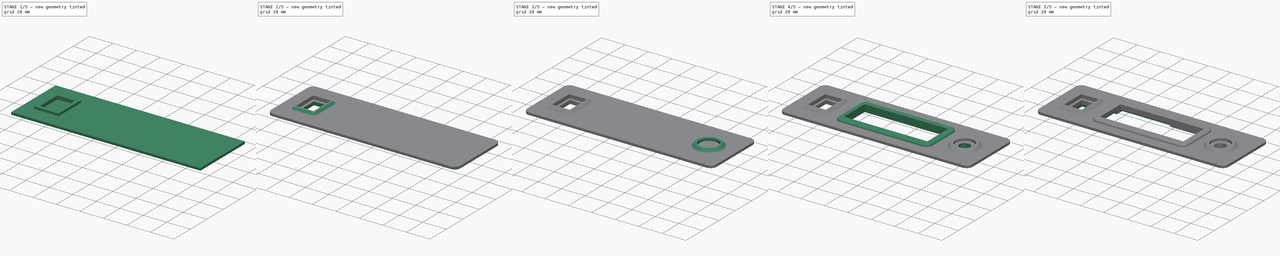
[diagram: build sequence overview — one tinted view per stage of 5, left to right]
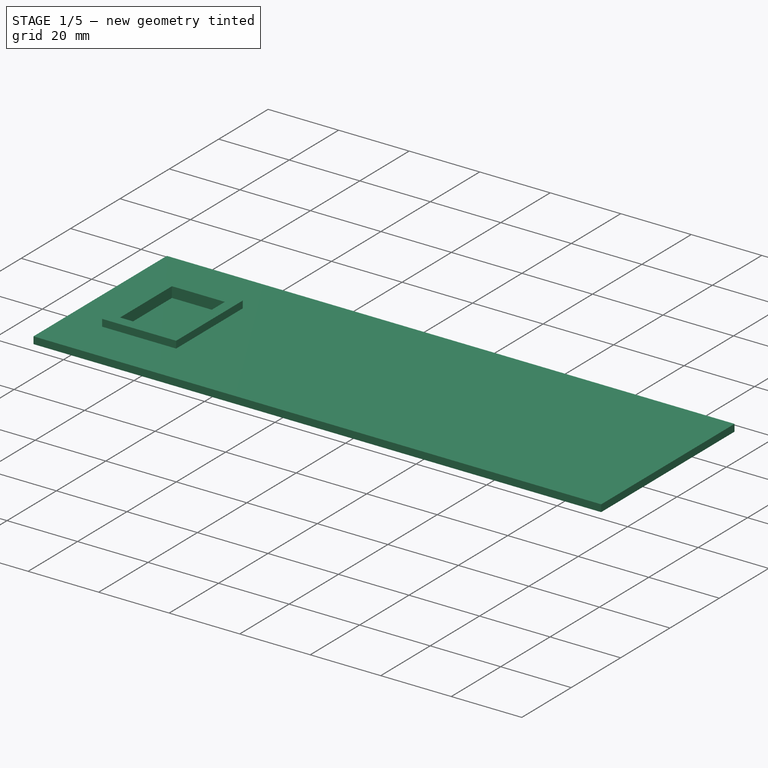
[diagram: stage 1 of 5 — iso view after this stage's code; geometry added in this stage tinted green]
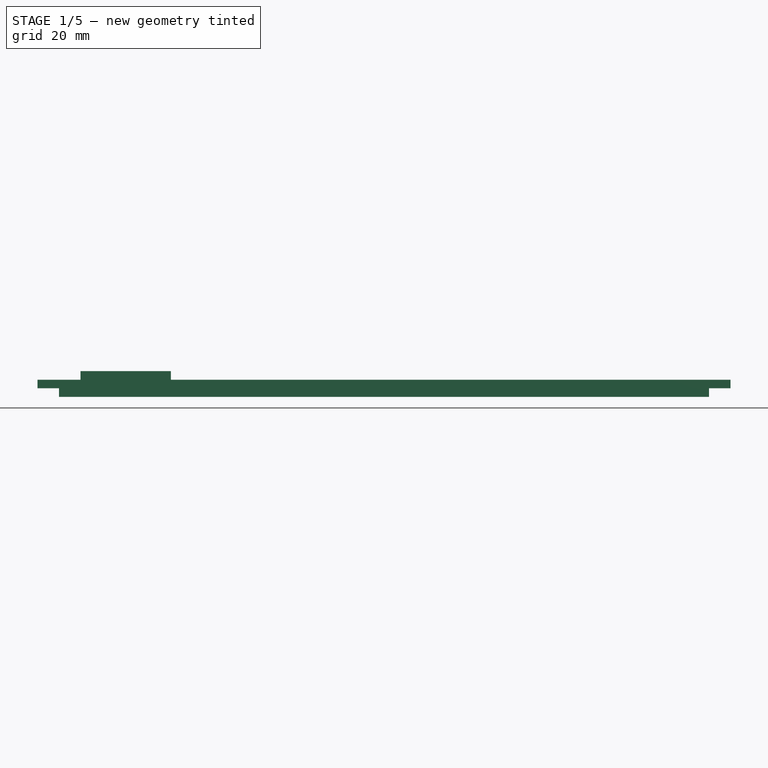
[diagram: stage 1 of 5 — front view after this stage's code; geometry added in this stage tinted green]
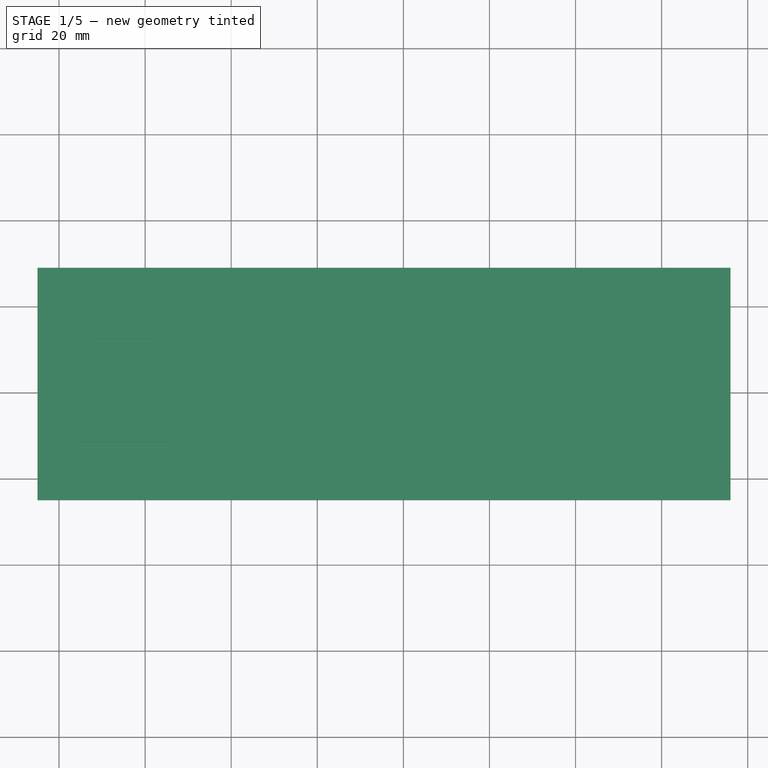
[diagram: stage 1 of 5 — top view after this stage's code; geometry added in this stage tinted green]
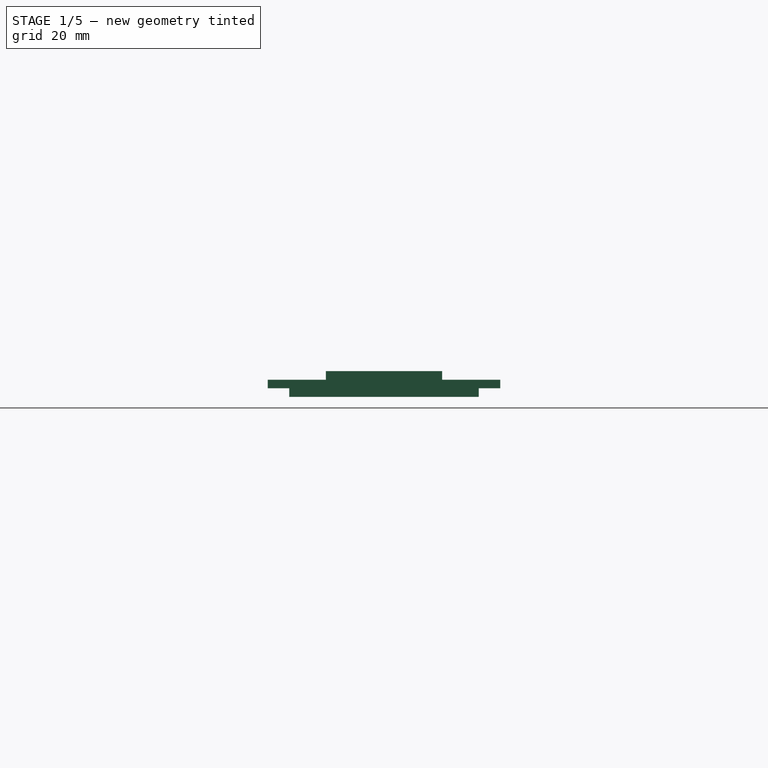
[diagram: stage 1 of 5 — right view after this stage's code; geometry added in this stage tinted green]
FCSTD DOCUMENT  (FreeCAD 0.17R13519 (Git))
Label: panel2
License: All rights reserved
LicenseURL: http://en.wikipedia.org/wiki/All_rights_reserved
objects: Sketcher::SketchObject×15, PartDesign::Pad×8, PartDesign::Pocket×7, PartDesign::Fillet×4, PartDesign::Chamfer×3, PartDesign::Body×1
note: 53 computed .brp shape members not serialized (recipe doc carries the construction recipe); baked Part::Feature solids carry a one-line shape summary decoded from their .brp

FEATURE [Sketcher::SketchObject] Sketch
  MapMode = 5
  Support = -> [XY_Plane]
  sketch-geometry (4):
    g0: LineSegment StartX=0 StartY=44 StartZ=0 EndX=151 EndY=44 EndZ=0
    g1: LineSegment StartX=151 StartY=44 StartZ=0 EndX=151 EndY=0 EndZ=0
    g2: LineSegment StartX=151 StartY=0 StartZ=0 EndX=0 EndY=0 EndZ=0
    g3: LineSegment StartX=0 StartY=0 StartZ=0 EndX=0 EndY=44 EndZ=0
  constraints (11):
    c: Coincident(g0,g1)
    c: Coincident(g1,g2)
    c: Coincident(g2,g3)
    c: Coincident(g3,g0)
    c: Horizontal(g0)
    c: Horizontal(g2)
    c: Vertical(g1)
    c: Vertical(g3)
    c: DistanceX(g2,g2) = 151
    c: DistanceY(g3,g3) = 44
    c: Coincident(g2,g-1)
FEATURE [PartDesign::Pad] Pad
  Length = 2
  Length2 = 100
  Profile = -> Sketch
  Type = 0
FEATURE [Sketcher::SketchObject] Sketch001
  ExternalGeometry = -> [Pad]
  MapMode = 5
  Placement = pos=(0,0,2) rot=(0,0,1;0rad)
  Support = -> [Pad]
  sketch-geometry (4):
    g0: LineSegment StartX=-5 StartY=49 StartZ=0 EndX=156 EndY=49 EndZ=0
    g1: LineSegment StartX=156 StartY=49 StartZ=0 EndX=156 EndY=-5 EndZ=0
    g2: LineSegment StartX=156 StartY=-5 StartZ=0 EndX=-5 EndY=-5 EndZ=0
    g3: LineSegment StartX=-5 StartY=-5 StartZ=0 EndX=-5 EndY=49 EndZ=0
  constraints (12):
    c: Coincident(g0,g1)
    c: Coincident(g1,g2)
    c: Coincident(g2,g3)
    c: Coincident(g3,g0)
    c: Horizontal(g0)
    c: Horizontal(g2)
    c: Vertical(g1)
    c: Vertical(g3)
    c: DistanceX(g2,g-1) = 5
    c: DistanceY(g-3,g0) = 5
    c: DistanceY(g1,g-4) = 5
    c: DistanceX(g-4,g0) = 5
FEATURE [PartDesign::Pad] Pad001
  BaseFeature = -> Pad
  Length = 2
  Length2 = 100
  Profile = -> Sketch001
  Type = 0
FEATURE [Sketcher::SketchObject] Sketch002
  ExternalGeometry = -> [Pad001]
  MapMode = 5
  Placement = pos=(0,0,4) rot=(0,0,1;0rad)
  Support = -> [Pad001]
  sketch-geometry (5):
    g0: LineSegment [constr] StartX=-5 StartY=22 StartZ=0 EndX=156 EndY=22 EndZ=0
    g1: LineSegment StartX=5 StartY=35.5 StartZ=0 EndX=26 EndY=35.5 EndZ=0
    g2: LineSegment StartX=26 StartY=35.5 StartZ=0 EndX=26 EndY=8.5 EndZ=0
    g3: LineSegment StartX=26 StartY=8.5 StartZ=0 EndX=5 EndY=8.5 EndZ=0
    g4: LineSegment StartX=5 StartY=8.5 StartZ=0 EndX=5 EndY=35.5 EndZ=0
  constraints (15):
    c: Horizontal(g0)
    c: Symmetric(g-4,g-4,g0)
    c: PointOnObject(g0,g-3)
    c: Coincident(g1,g2)
    c: Coincident(g2,g3)
    c: Coincident(g3,g4)
    c: Coincident(g4,g1)
    c: Horizontal(g1)
    c: Horizontal(g3)
    c: Vertical(g2)
    c: Vertical(g4)
    c: DistanceX(g-5,g1) = 5
    c: DistanceY(g4,g4) = 27
    c: DistanceX(g3,g3) = 21
    c: Symmetric(g3,g1,g0)
FEATURE [PartDesign::Pad] Pad002
  BaseFeature = -> Pad001
  Length = 2
  Length2 = 100
  Profile = -> Sketch002
  Type = 0
FEATURE [Sketcher::SketchObject] Sketch003
  ExternalGeometry = -> [Pad002]
  MapMode = 5
  Placement = pos=(0,0,6) rot=(0,0,1;0rad)
  Support = -> [Pad002]
  sketch-geometry (6):
    g0: LineSegment StartX=8 StartY=32.5 StartZ=0 EndX=23 EndY=32.5 EndZ=0
    g1: LineSegment StartX=23 StartY=32.5 StartZ=0 EndX=23 EndY=11.5 EndZ=0
    g2: LineSegment StartX=23 StartY=11.5 StartZ=0 EndX=8 EndY=11.5 EndZ=0
    g3: LineSegment StartX=8 StartY=11.5 StartZ=0 EndX=8 EndY=32.5 EndZ=0
    g4: LineSegment [constr] StartX=5 StartY=22 StartZ=0 EndX=26 EndY=22 EndZ=0
    g5: LineSegment [constr] StartX=15.5 StartY=35.5 StartZ=0 EndX=15.5 EndY=8.5 EndZ=0
  constraints (18):
    c: Coincident(g0,g1)
    c: Coincident(g1,g2)
    c: Coincident(g2,g3)
    c: Coincident(g3,g0)
    c: Horizontal(g0)
    c: Horizontal(g2)
    c: Vertical(g1)
    c: Vertical(g3)
    c: PointOnObject(g4,g-4)
    c: Horizontal(g4)
    c: Symmetric(g-3,g-3,g4)
    c: PointOnObject(g5,g-5)
    c: Vertical(g5)
    c: Symmetric(g-4,g-3,g5)
    c: Symmetric(g0,g0,g5)
    c: Symmetric(g2,g0,g4)
    c: DistanceY(g3,g3) = 21
    c: DistanceX(g2,g2) = 15
FEATURE [PartDesign::Pocket] Pocket
  BaseFeature = -> Pad002
  Length = 3
  Length2 = 100
  Profile = -> Sketch003
  Type = 0
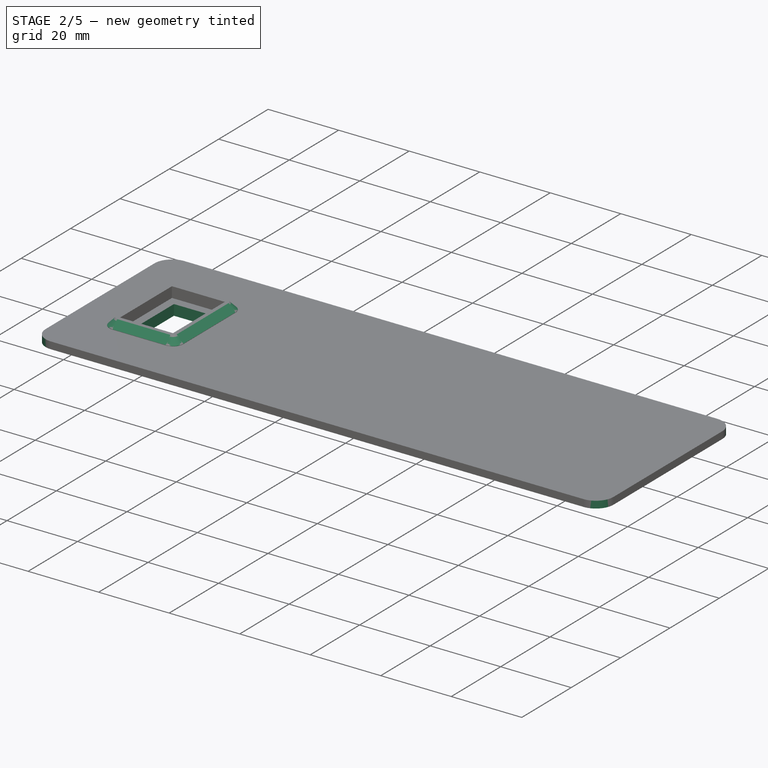
[diagram: stage 2 of 5 — iso view after this stage's code; geometry added in this stage tinted green]
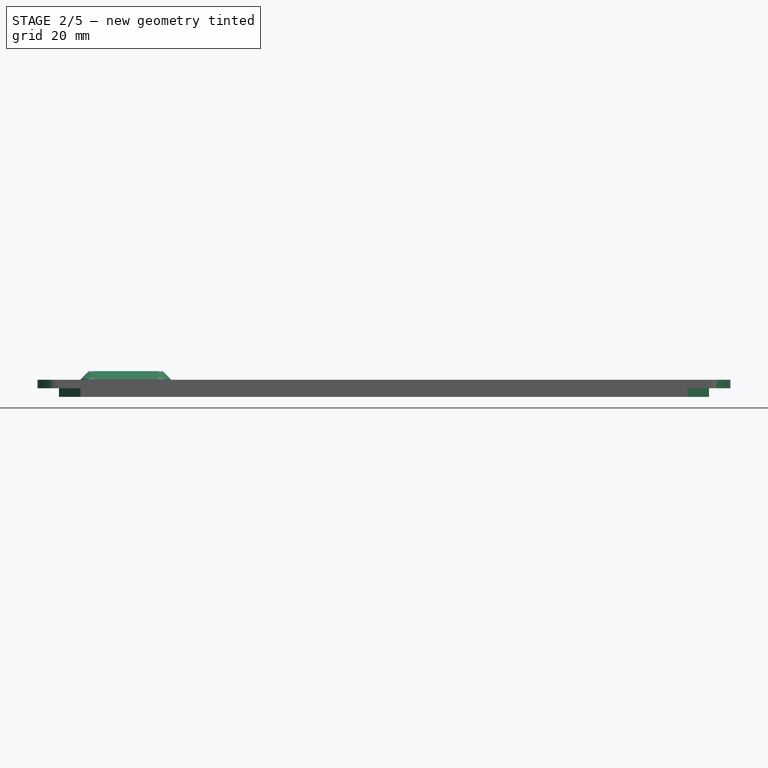
[diagram: stage 2 of 5 — front view after this stage's code; geometry added in this stage tinted green]
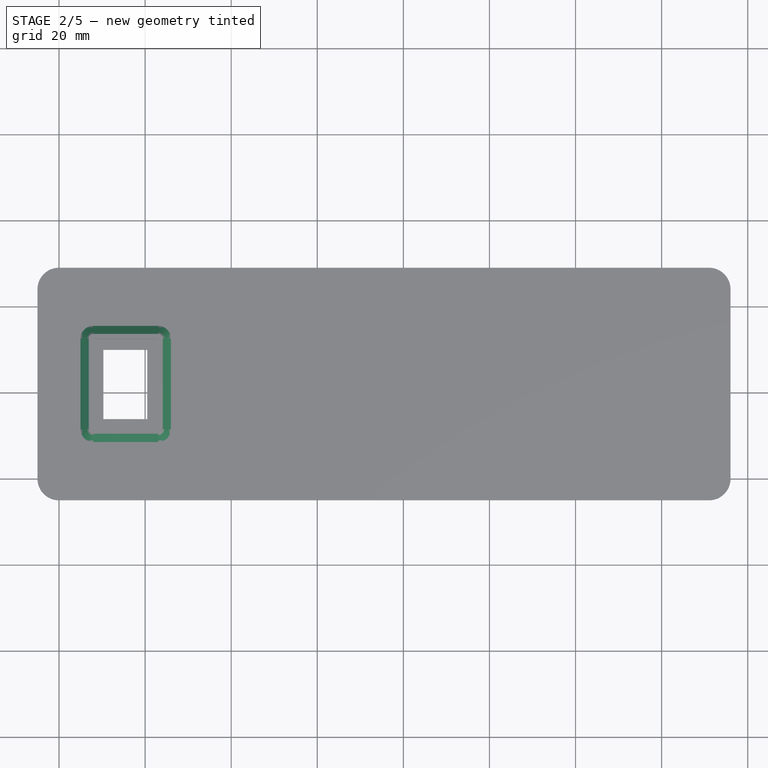
[diagram: stage 2 of 5 — top view after this stage's code; geometry added in this stage tinted green]
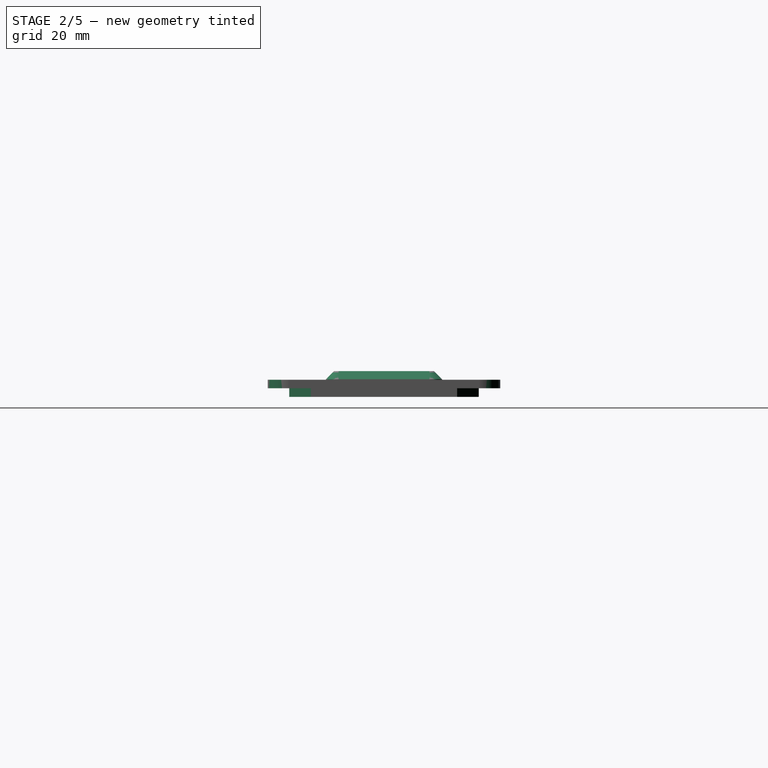
[diagram: stage 2 of 5 — right view after this stage's code; geometry added in this stage tinted green]
FEATURE [Sketcher::SketchObject] Sketch004
  ExternalGeometry = -> [Pocket]
  MapMode = 5
  Placement = pos=(0,0,3) rot=(0,0,1;0rad)
  Support = -> [Pocket]
  sketch-geometry (4):
    g0: LineSegment StartX=10.3211 StartY=30.0142 StartZ=0 EndX=20.5124 EndY=30.0142 EndZ=0
    g1: LineSegment StartX=20.5124 StartY=30.0142 StartZ=0 EndX=20.5124 EndY=13.8375 EndZ=0
    g2: LineSegment StartX=20.5124 StartY=13.8375 StartZ=0 EndX=10.3211 EndY=13.8375 EndZ=0
    g3: LineSegment StartX=10.3211 StartY=13.8375 StartZ=0 EndX=10.3211 EndY=30.0142 EndZ=0
  constraints (8):
    c: Coincident(g0,g1)
    c: Coincident(g1,g2)
    c: Coincident(g2,g3)
    c: Coincident(g3,g0)
    c: Horizontal(g0)
    c: Horizontal(g2)
    c: Vertical(g1)
    c: Vertical(g3)
FEATURE [PartDesign::Pocket] Pocket001
  BaseFeature = -> Pocket
  Length = 5
  Length2 = 100
  Profile = -> Sketch004
  Type = 1
FEATURE [PartDesign::Chamfer] Chamfer
  Base = -> Pocket001 [Edge15,Edge11,Edge9,Edge12]
  BaseFeature = -> Pocket001
  Size = 5
FEATURE [PartDesign::Fillet] Fillet
  Base = -> Chamfer [Edge48,Edge45,Edge50,Edge46]
  BaseFeature = -> Chamfer
  Radius = 5
FEATURE [PartDesign::Fillet] Fillet001
  Base = -> Fillet [Edge61,Edge59,Edge63,Edge57]
  BaseFeature = -> Fillet
  Radius = 3
FEATURE [PartDesign::Chamfer] Chamfer001
  Base = -> Fillet001 [Edge25]
  BaseFeature = -> Fillet001
  Size = 1.9
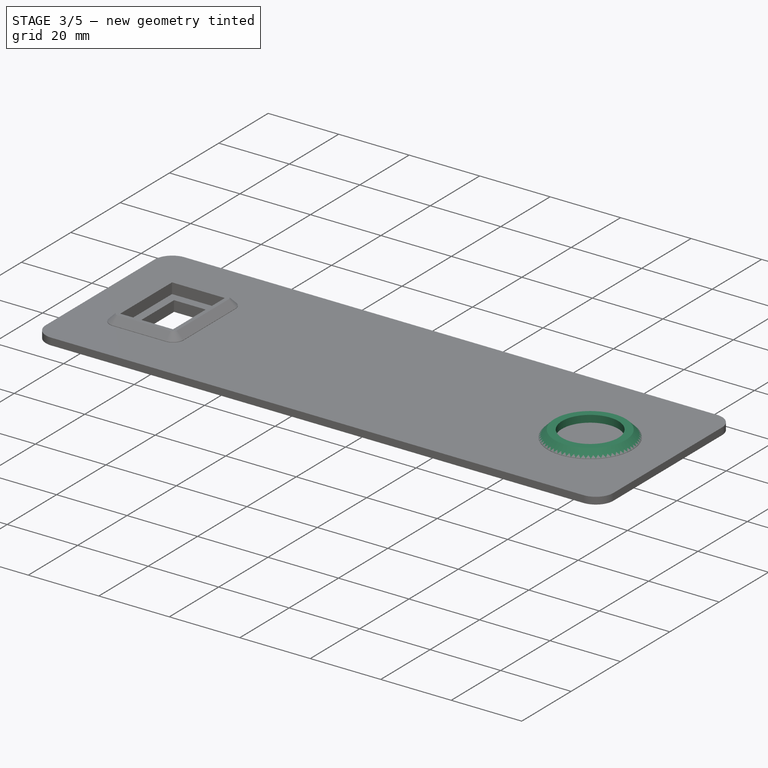
[diagram: stage 3 of 5 — iso view after this stage's code; geometry added in this stage tinted green]
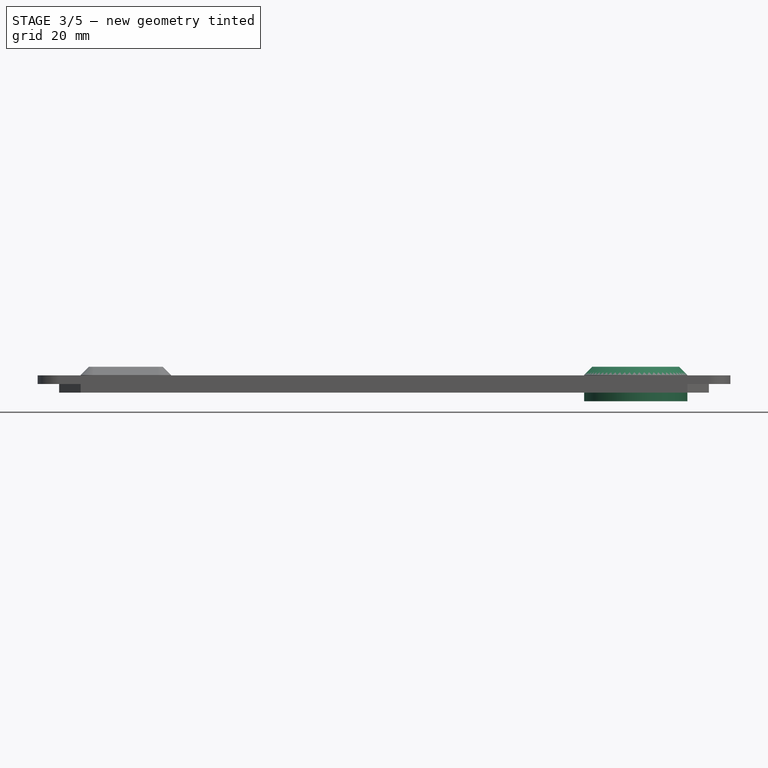
[diagram: stage 3 of 5 — front view after this stage's code; geometry added in this stage tinted green]
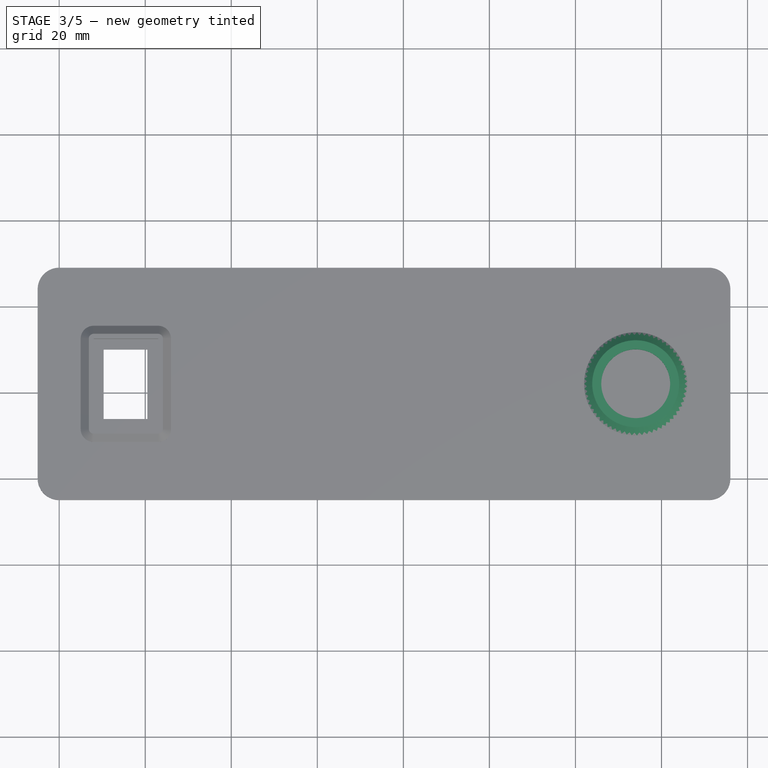
[diagram: stage 3 of 5 — top view after this stage's code; geometry added in this stage tinted green]
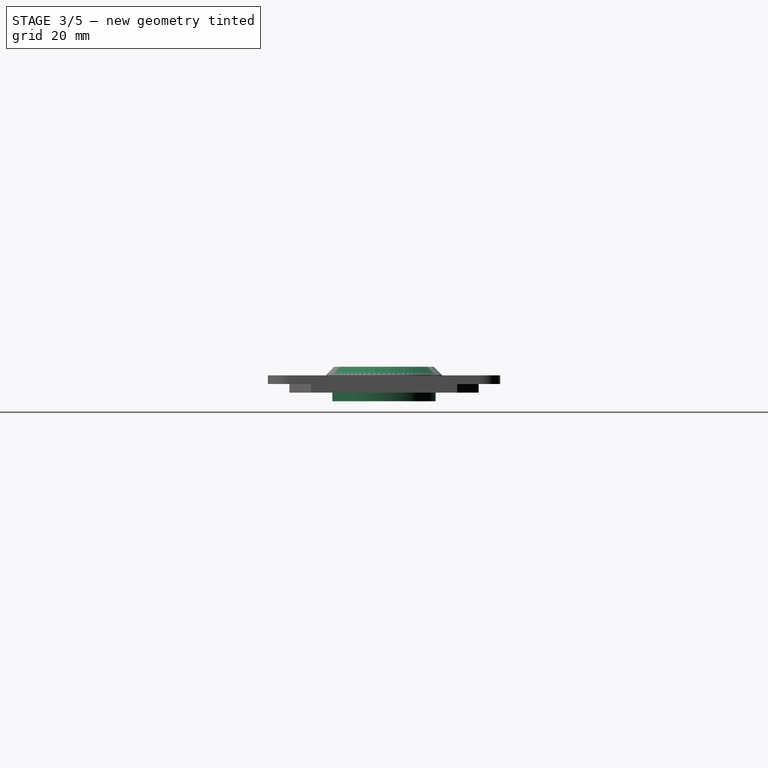
[diagram: stage 3 of 5 — right view after this stage's code; geometry added in this stage tinted green]
FEATURE [Sketcher::SketchObject] Sketch005
  ExternalGeometry = -> [Chamfer001]
  MapMode = 5
  Placement = pos=(0,0,4) rot=(0,0,1;0rad)
  Support = -> [Chamfer001]
  sketch-geometry (8):
    g0: Circle [constr] CenterX=134 CenterY=22 CenterZ=0 NormalX=0 NormalY=0 NormalZ=1 AngleXU=0 Radius=10
    g1: LineSegment [constr] StartX=151 StartY=22 StartZ=0 EndX=0 EndY=22 EndZ=0
    g2: Circle CenterX=134 CenterY=22 CenterZ=0 NormalX=0 NormalY=0 NormalZ=1 AngleXU=0 Radius=12
    g3: LineSegment [constr] StartX=35 StartY=40 StartZ=0 EndX=116 EndY=40 EndZ=0
    g4: LineSegment [constr] StartX=116 StartY=40 StartZ=0 EndX=116 EndY=4 EndZ=0
    g5: LineSegment [constr] StartX=116 StartY=4 StartZ=0 EndX=35 EndY=4 EndZ=0
    g6: LineSegment [constr] StartX=35 StartY=4 StartZ=0 EndX=35 EndY=40 EndZ=0
    g7: LineSegment [constr] StartX=75.5 StartY=44 StartZ=0 EndX=75.5 EndY=0 EndZ=0
  constraints (23):
    c: Horizontal(g1)
    c: PointOnObject(g1,g-2)
    c: Symmetric(g-3,g-3,g1)
    c: PointOnObject(g0,g1)
    c: Radius(g0) = 10
    c: Coincident(g2,g0)
    c: Radius(g2) = 12
    c: DistanceX(g0,g1) = 17
    c: Coincident(g3,g4)
    c: Coincident(g4,g5)
    c: Coincident(g5,g6)
    c: Coincident(g6,g3)
    c: Horizontal(g3)
    c: Horizontal(g5)
    c: Vertical(g4)
    c: Vertical(g6)
    c: DistanceX(g5,g5) = 81
    c: Symmetric(g4,g3,g1)
    c: PointOnObject(g7,g-4)
    c: Vertical(g7)
    c: Symmetric(g-5,g-5,g7)
    c: DistanceY(g6,g6) = 36
    c: Symmetric(g4,g5,g7)
FEATURE [PartDesign::Pad] Pad003
  BaseFeature = -> Chamfer001
  Length = 2
  Length2 = 100
  Profile = -> Sketch005
  Type = 0
FEATURE [Sketcher::SketchObject] Sketch006
  ExternalGeometry = -> [Pad003]
  MapMode = 5
  Placement = pos=(0,0,6) rot=(0,0,1;0rad)
  Support = -> [Pad003]
  sketch-geometry (1):
    g0: Circle CenterX=134 CenterY=22 CenterZ=0 NormalX=0 NormalY=0 NormalZ=1 AngleXU=0 Radius=8
  constraints (2):
    c: Coincident(g0,g-3)
    c: Radius(g0) = 8
FEATURE [PartDesign::Pocket] Pocket002
  BaseFeature = -> Pad003
  Length = 2
  Length2 = 100
  Profile = -> Sketch006
  Type = 0
FEATURE [PartDesign::Chamfer] Chamfer002
  Base = -> Pocket002 [Edge67]
  BaseFeature = -> Pocket002
  Size = 1.9
FEATURE [Sketcher::SketchObject] Sketch007
  ExternalGeometry = -> [Chamfer002]
  MapMode = 5
  Placement = pos=(0,0,0) rot=(1,0,0;3.14159rad)
  Support = -> [Chamfer002]
  sketch-geometry (1):
    g0: Circle CenterX=134 CenterY=-22 CenterZ=0 NormalX=0 NormalY=0 NormalZ=1 AngleXU=0 Radius=12
  constraints (2):
    c: Coincident(g0,g-3)
    c: Radius(g0) = 12
FEATURE [PartDesign::Pad] Pad004
  BaseFeature = -> Chamfer002
  Length = 2
  Length2 = 100
  Profile = -> Sketch007
  Type = 0
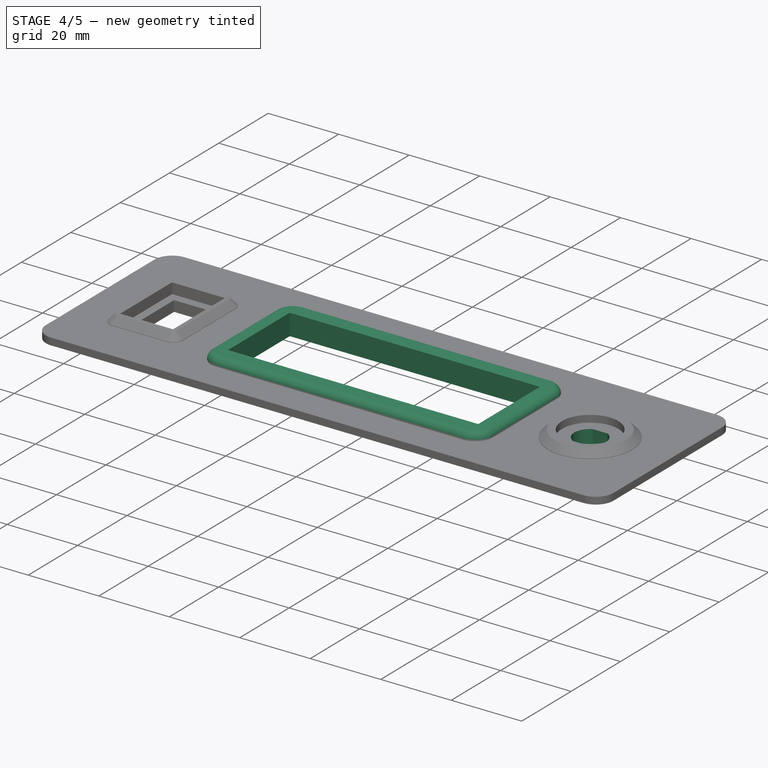
[diagram: stage 4 of 5 — iso view after this stage's code; geometry added in this stage tinted green]
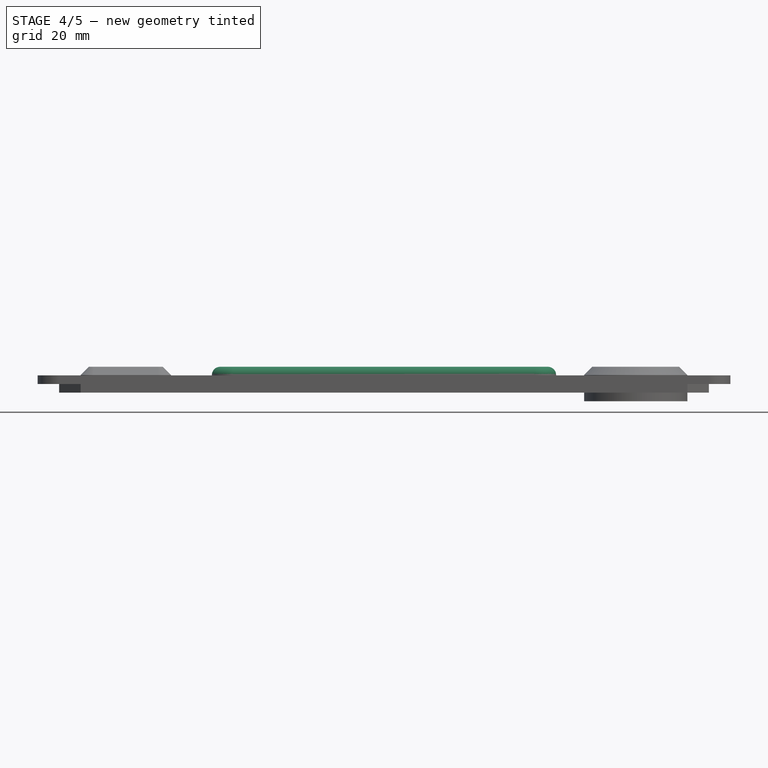
[diagram: stage 4 of 5 — front view after this stage's code; geometry added in this stage tinted green]
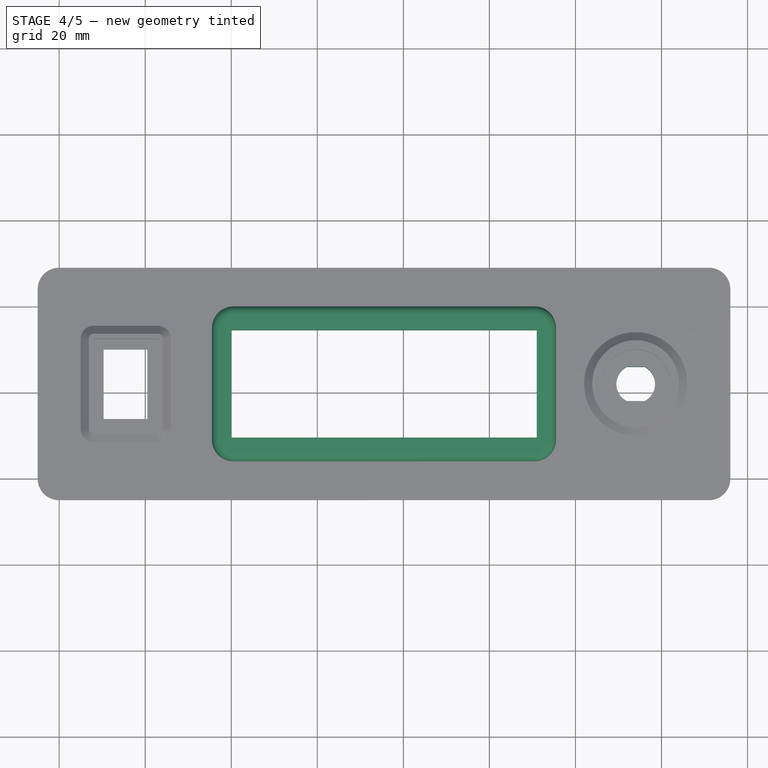
[diagram: stage 4 of 5 — top view after this stage's code; geometry added in this stage tinted green]
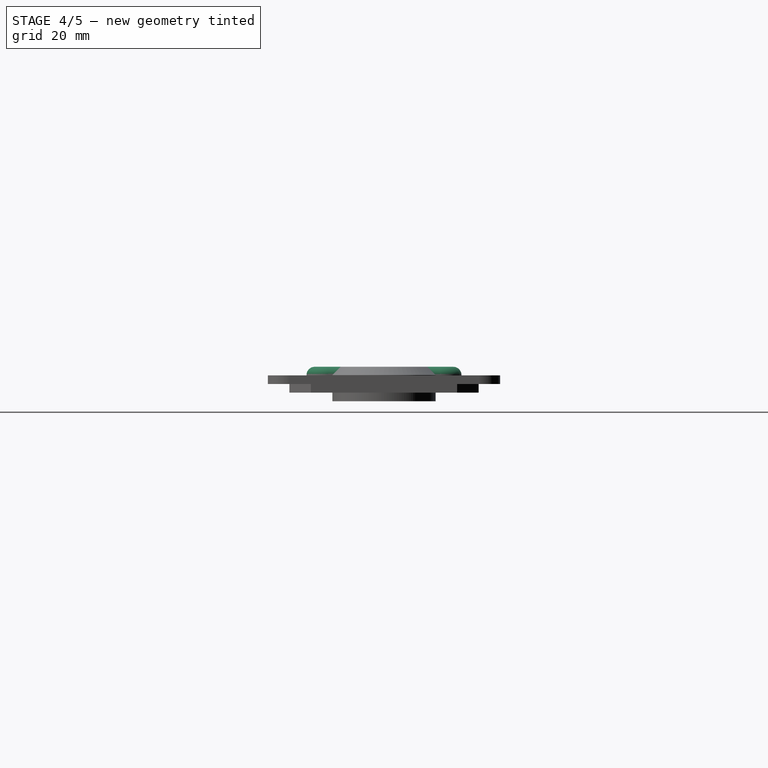
[diagram: stage 4 of 5 — right view after this stage's code; geometry added in this stage tinted green]
FEATURE [Sketcher::SketchObject] Sketch008
  ExternalGeometry = -> [Pad004]
  MapMode = 5
  Placement = pos=(0,0,4) rot=(0,0,1;0rad)
  Support = -> [Pad004]
  sketch-geometry (4):
    g0: ArcOfCircle CenterX=134 CenterY=22 CenterZ=0 NormalX=0 NormalY=0 NormalZ=1 AngleXU=0 Radius=4.5 StartAngle=2.04668 EndAngle=4.23651
    g1: LineSegment StartX=131.938 StartY=26 StartZ=0 EndX=136.062 EndY=26 EndZ=0
    g2: LineSegment StartX=136.062 StartY=18 StartZ=0 EndX=131.938 EndY=18 EndZ=0
    g3: ArcOfCircle CenterX=134 CenterY=22 CenterZ=0 NormalX=0 NormalY=0 NormalZ=1 AngleXU=0 Radius=4.5 StartAngle=5.18827 EndAngle=7.3781
  constraints (12):
    c: Coincident(g0,g-3)
    c: Horizontal(g1)
    c: Horizontal(g2)
    c: Radius(g0) = 4.5
    c: Coincident(g0,g1)
    c: Coincident(g3,g1)
    c: Equal(g0,g3)
    c: Coincident(g0,g2)
    c: Coincident(g3,g2)
    c: Coincident(g0,g3)
    c: Equal(g2,g1)
    c: DistanceY(g0,g0) = 8
FEATURE [PartDesign::Pocket] Pocket003
  BaseFeature = -> Pad004
  Length = 5
  Length2 = 100
  Profile = -> Sketch008
  Type = 1
FEATURE [Sketcher::SketchObject] Sketch009
  ExternalGeometry = -> [Pocket003]
  MapMode = 5
  Placement = pos=(0,0,4) rot=(0,0,1;0rad)
  Support = -> [Pocket003]
  sketch-geometry (10):
    g0: LineSegment StartX=35.5 StartY=40 StartZ=0 EndX=115.5 EndY=40 EndZ=0
    g1: LineSegment StartX=115.5 StartY=40 StartZ=0 EndX=115.5 EndY=4 EndZ=0
    g2: LineSegment StartX=115.5 StartY=4 StartZ=0 EndX=35.5 EndY=4 EndZ=0
    g3: LineSegment StartX=35.5 StartY=4 StartZ=0 EndX=35.5 EndY=40 EndZ=0
    g4: LineSegment [constr] StartX=75.5 StartY=39 StartZ=0 EndX=75.5 EndY=0 EndZ=0
    g5: LineSegment [constr] StartX=0 StartY=22 StartZ=0 EndX=151 EndY=22 EndZ=0
    g6: LineSegment StartX=40 StartY=34.5 StartZ=0 EndX=111 EndY=34.5 EndZ=0
    g7: LineSegment StartX=111 StartY=34.5 StartZ=0 EndX=111 EndY=9.5 EndZ=0
    g8: LineSegment StartX=111 StartY=9.5 StartZ=0 EndX=40 EndY=9.5 EndZ=0
    g9: LineSegment StartX=40 StartY=9.5 StartZ=0 EndX=40 EndY=34.5 EndZ=0
  constraints (31):
    c: Coincident(g0,g1)
    c: Coincident(g1,g2)
    c: Coincident(g2,g3)
    c: Coincident(g3,g0)
    c: Horizontal(g0)
    c: Horizontal(g2)
    c: Vertical(g1)
    c: Vertical(g3)
    c: Vertical(g4)
    c: Symmetric(g-3,g-4,g4)
    c: PointOnObject(g4,g-5)
    c: Symmetric(g0,g0,g4)
    c: PointOnObject(g5,g-3)
    c: PointOnObject(g5,g-4)
    c: Symmetric(g-4,g-4,g5)
    c: Symmetric(g2,g0,g5)
    c: Symmetric(g2,g1,g4)
    c: DistanceX(g2,g2) = 80
    c: DistanceY(g3,g3) = 36
    c: Coincident(g6,g7)
    c: Coincident(g7,g8)
    c: Coincident(g8,g9)
    c: Coincident(g9,g6)
    c: Horizontal(g6)
    c: Horizontal(g8)
    c: Vertical(g7)
    c: Vertical(g9)
    c: Symmetric(g8,g7,g4)
    c: Symmetric(g8,g6,g5)
    c: DistanceY(g8,g6) = 25
    c: DistanceX(g6,g6) = 71
FEATURE [PartDesign::Pad] Pad005
  BaseFeature = -> Pocket003
  Length = 2
  Length2 = 100
  Profile = -> Sketch009
  Type = 0
FEATURE [PartDesign::Fillet] Fillet002
  Base = -> Pad005 [Edge63,Edge61,Edge65,Edge59]
  BaseFeature = -> Pad005
  Radius = 5
FEATURE [Sketcher::SketchObject] Sketch010
  ExternalGeometry = -> [Fillet002]
  MapMode = 5
  Placement = pos=(0,0,4) rot=(0,0,1;0rad)
  Support = -> [Fillet002]
  sketch-geometry (4):
    g0: LineSegment StartX=40 StartY=9.5 StartZ=0 EndX=111 EndY=9.5 EndZ=0
    g1: LineSegment StartX=111 StartY=9.5 StartZ=0 EndX=111 EndY=34.5 EndZ=0
    g2: LineSegment StartX=111 StartY=34.5 StartZ=0 EndX=40 EndY=34.5 EndZ=0
    g3: LineSegment StartX=40 StartY=34.5 StartZ=0 EndX=40 EndY=9.5 EndZ=0
  constraints (10):
    c: Coincident(g0,g1)
    c: Coincident(g1,g2)
    c: Coincident(g2,g3)
    c: Coincident(g3,g0)
    c: Horizontal(g0)
    c: Horizontal(g2)
    c: Vertical(g1)
    c: Vertical(g3)
    c: Coincident(g0,g-4)
    c: Coincident(g1,g-3)
FEATURE [PartDesign::Pocket] Pocket004
  BaseFeature = -> Fillet002
  Length = 5
  Length2 = 100
  Profile = -> Sketch010
  Type = 1
FEATURE [PartDesign::Fillet] Fillet003
  Base = -> Pocket004 [Edge28]
  BaseFeature = -> Pocket004
  Radius = 1.9
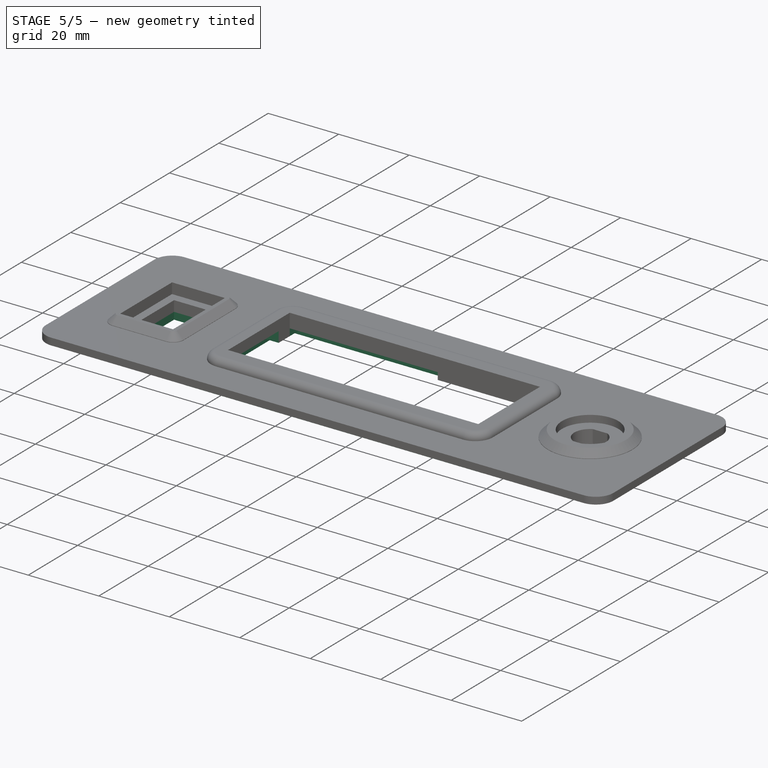
[diagram: stage 5 of 5 — iso view after this stage's code; geometry added in this stage tinted green]
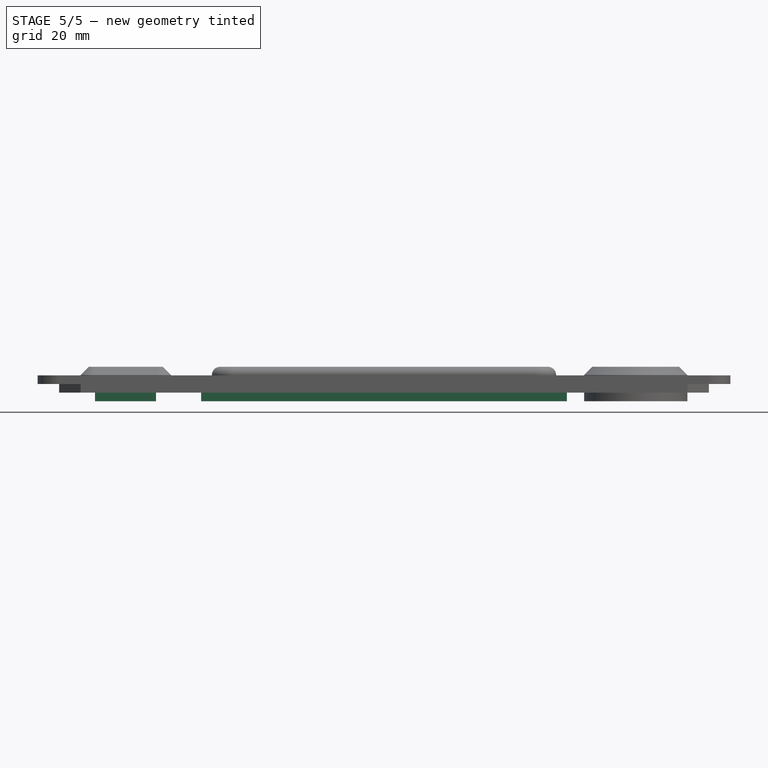
[diagram: stage 5 of 5 — front view after this stage's code; geometry added in this stage tinted green]
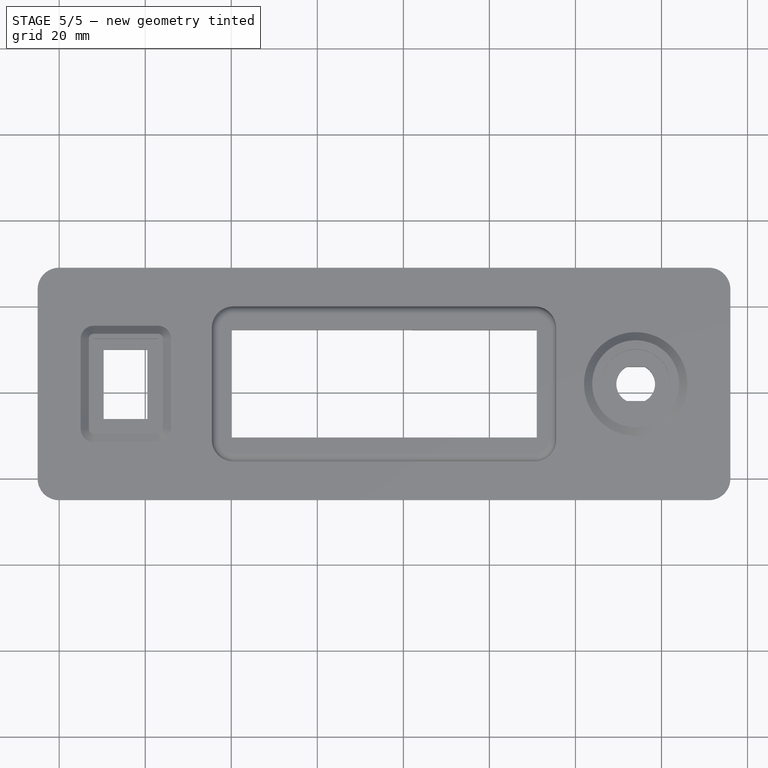
[diagram: stage 5 of 5 — top view after this stage's code; geometry added in this stage tinted green]
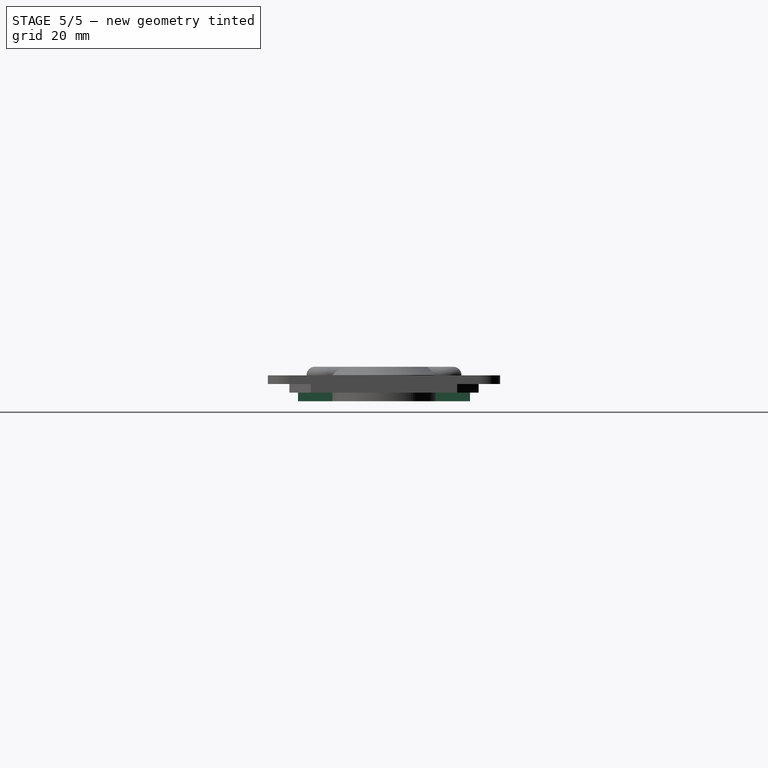
[diagram: stage 5 of 5 — right view after this stage's code; geometry added in this stage tinted green]
FEATURE [Sketcher::SketchObject] Sketch011
  ExternalGeometry = -> [Fillet003]
  MapMode = 5
  Placement = pos=(0,0,0) rot=(1,0,0;3.14159rad)
  Support = -> [Fillet003]
  sketch-geometry (12):
    g0: LineSegment StartX=33 StartY=-2 StartZ=0 EndX=118 EndY=-2 EndZ=0
    g1: LineSegment StartX=118 StartY=-2 StartZ=0 EndX=118 EndY=-42 EndZ=0
    g2: LineSegment StartX=118 StartY=-42 StartZ=0 EndX=33 EndY=-42 EndZ=0
    g3: LineSegment StartX=33 StartY=-42 StartZ=0 EndX=33 EndY=-2 EndZ=0
    g4: LineSegment StartX=35 StartY=-4 StartZ=0 EndX=116 EndY=-4 EndZ=0
    g5: LineSegment StartX=35 StartY=-40 StartZ=0 EndX=35 EndY=-4 EndZ=0
    g6: LineSegment StartX=35 StartY=-40 StartZ=0 EndX=116 EndY=-40 EndZ=0
    g7: LineSegment StartX=116 StartY=-40 StartZ=0 EndX=116 EndY=-4 EndZ=0
    g8: LineSegment [constr] StartX=40 StartY=-9.5 StartZ=0 EndX=40 EndY=-2 EndZ=0
    g9: LineSegment [constr] StartX=40 StartY=-34.5 StartZ=0 EndX=40 EndY=-42 EndZ=0
    g10: LineSegment [constr] StartX=40 StartY=-34.5 StartZ=0 EndX=33 EndY=-34.5 EndZ=0
    g11: LineSegment [constr] StartX=118 StartY=-34.5 StartZ=0 EndX=111 EndY=-34.5 EndZ=0
  constraints (36):
    c: Coincident(g0,g1)
    c: Coincident(g1,g2)
    c: Coincident(g2,g3)
    c: Coincident(g3,g0)
    c: Horizontal(g0)
    c: Horizontal(g2)
    c: Vertical(g1)
    c: Vertical(g3)
    c: Coincident(g5,g4)
    c: Horizontal(g4)
    c: Vertical(g5)
    c: DistanceX(g2,g2) = 85
    c: DistanceY(g3,g3) = 40
    c: Coincident(g5,g6)
    c: Horizontal(g6)
    c: Coincident(g6,g7)
    c: Coincident(g7,g4)
    c: Vertical(g7)
    c: Coincident(g8,g-3)
    c: PointOnObject(g8,g0)
    c: Vertical(g8)
    c: Coincident(g9,g-3)
    c: PointOnObject(g9,g2)
    c: Vertical(g9)
    c: Equal(g9,g8)
    c: Coincident(g10,g9)
    c: PointOnObject(g10,g3)
    c: Horizontal(g10)
    c: PointOnObject(g11,g1)
    c: Coincident(g11,g-4)
    c: Horizontal(g11)
    c: Equal(g11,g10)
    c: DistanceX(g6,g6) = 81
    c: DistanceX(g2,g5) = 2
    c: DistanceY(g4,g0) = 2
    c: DistanceY(g1,g6) = 2
FEATURE [PartDesign::Pad] Pad006
  BaseFeature = -> Fillet003
  Length = 2
  Length2 = 100
  Profile = -> Sketch011
  Type = 0
FEATURE [Sketcher::SketchObject] Sketch012
  ExternalGeometry = -> [Pad006]
  MapMode = 5
  Placement = pos=(0,0,0) rot=(1,0,0;3.14159rad)
  Support = -> [Pad006]
  sketch-geometry (8):
    g0: LineSegment StartX=111 StartY=-9.5 StartZ=0 EndX=69 EndY=-9.5 EndZ=0
    g1: LineSegment StartX=69 StartY=-9.5 StartZ=0 EndX=69 EndY=-4 EndZ=0
    g2: LineSegment StartX=69 StartY=-4 StartZ=0 EndX=111 EndY=-4 EndZ=0
    g3: LineSegment StartX=111 StartY=-4 StartZ=0 EndX=111 EndY=-9.5 EndZ=0
    g4: LineSegment StartX=40 StartY=-40 StartZ=0 EndX=82 EndY=-40 EndZ=0
    g5: LineSegment StartX=82 StartY=-40 StartZ=0 EndX=82 EndY=-34.5 EndZ=0
    g6: LineSegment StartX=82 StartY=-34.5 StartZ=0 EndX=40 EndY=-34.5 EndZ=0
    g7: LineSegment StartX=40 StartY=-34.5 StartZ=0 EndX=40 EndY=-40 EndZ=0
  constraints (22):
    c: Coincident(g0,g1)
    c: Coincident(g1,g2)
    c: Coincident(g2,g3)
    c: Coincident(g3,g0)
    c: Horizontal(g0)
    c: Horizontal(g2)
    c: Vertical(g1)
    c: Vertical(g3)
    c: Coincident(g0,g-3)
    c: DistanceX(g2,g2) = 42
    c: PointOnObject(g1,g-4)
    c: Coincident(g4,g5)
    c: Coincident(g5,g6)
    c: Coincident(g6,g7)
    c: Coincident(g7,g4)
    c: Horizontal(g4)
    c: Horizontal(g6)
    c: Vertical(g5)
    c: Vertical(g7)
    c: Coincident(g6,g-6)
    c: PointOnObject(g4,g-5)
    c: DistanceX(g4,g4) = 42
FEATURE [PartDesign::Pocket] Pocket005
  BaseFeature = -> Pad006
  Length = 2
  Length2 = 100
  Profile = -> Sketch012
  Type = 0
FEATURE [Sketcher::SketchObject] Sketch013
  ExternalGeometry = -> [Pocket005]
  MapMode = 5
  Placement = pos=(0,0,0) rot=(1,0,0;3.14159rad)
  Support = -> [Pocket005]
  sketch-geometry (10):
    g0: LineSegment StartX=40 StartY=-14 StartZ=0 EndX=35 EndY=-14 EndZ=0
    g1: LineSegment StartX=35 StartY=-14 StartZ=0 EndX=35 EndY=-30 EndZ=0
    g2: LineSegment StartX=35 StartY=-30 StartZ=0 EndX=40 EndY=-30 EndZ=0
    g3: LineSegment StartX=40 StartY=-30 StartZ=0 EndX=40 EndY=-14 EndZ=0
    g4: LineSegment [constr] StartX=35 StartY=-22 StartZ=0 EndX=111 EndY=-22 EndZ=0
    g5: LineSegment StartX=111 StartY=-14 StartZ=0 EndX=116 EndY=-14 EndZ=0
    g6: LineSegment StartX=116 StartY=-14 StartZ=0 EndX=116 EndY=-30 EndZ=0
    g7: LineSegment StartX=116 StartY=-30 StartZ=0 EndX=111 EndY=-30 EndZ=0
    g8: LineSegment StartX=111 StartY=-30 StartZ=0 EndX=111 EndY=-14 EndZ=0
    g9: LineSegment [constr] StartX=75.5 StartY=-40 StartZ=0 EndX=75.5 EndY=-4 EndZ=0
  constraints (30):
    c: Coincident(g0,g1)
    c: Coincident(g1,g2)
    c: Coincident(g2,g3)
    c: Coincident(g3,g0)
    c: Horizontal(g0)
    c: Horizontal(g2)
    c: Vertical(g1)
    c: Vertical(g3)
    c: PointOnObject(g4,g-3)
    c: PointOnObject(g4,g-4)
    c: Symmetric(g-3,g-3,g4)
    c: PointOnObject(g0,g-3)
    c: PointOnObject(g2,g-5)
    c: DistanceY(g3,g3) = 16
    c: Symmetric(g2,g0,g4)
    c: Coincident(g5,g6)
    c: Coincident(g6,g7)
    c: Coincident(g7,g8)
    c: Coincident(g8,g5)
    c: Horizontal(g5)
    c: Horizontal(g7)
    c: Vertical(g6)
    c: Vertical(g8)
    c: Equal(g2,g7)
    c: Equal(g8,g3)
    c: PointOnObject(g9,g-7)
    c: Vertical(g9)
    c: PointOnObject(g9,g-6)
    c: Symmetric(g-4,g-5,g9)
    c: Symmetric(g5,g0,g9)
FEATURE [PartDesign::Pocket] Pocket006
  BaseFeature = -> Pocket005
  Length = 3
  Length2 = 100
  Profile = -> Sketch013
  Type = 0
FEATURE [Sketcher::SketchObject] Sketch014
  ExternalGeometry = -> [Pocket006]
  MapMode = 5
  Placement = pos=(0,0,0) rot=(1,0,0;3.14159rad)
  Support = -> [Pocket006]
  sketch-geometry (8):
    g0: LineSegment StartX=8.32111 StartY=-11.8375 StartZ=0 EndX=22.5124 EndY=-11.8375 EndZ=0
    g1: LineSegment StartX=22.5124 StartY=-11.8375 StartZ=0 EndX=22.5124 EndY=-32.0142 EndZ=0
    g2: LineSegment StartX=22.5124 StartY=-32.0142 StartZ=0 EndX=8.32111 EndY=-32.0142 EndZ=0
    g3: LineSegment StartX=8.32111 StartY=-32.0142 StartZ=0 EndX=8.32111 EndY=-11.8375 EndZ=0
    g4: LineSegment StartX=10.3211 StartY=-13.8375 StartZ=0 EndX=20.5124 EndY=-13.8375 EndZ=0
    g5: LineSegment StartX=20.5124 StartY=-13.8375 StartZ=0 EndX=20.5124 EndY=-30.0142 EndZ=0
    g6: LineSegment StartX=20.5124 StartY=-30.0142 StartZ=0 EndX=10.3211 EndY=-30.0142 EndZ=0
    g7: LineSegment StartX=10.3211 StartY=-30.0142 StartZ=0 EndX=10.3211 EndY=-13.8375 EndZ=0
  constraints (22):
    c: Coincident(g0,g1)
    c: Coincident(g1,g2)
    c: Coincident(g2,g3)
    c: Coincident(g3,g0)
    c: Horizontal(g0)
    c: Horizontal(g2)
    c: Vertical(g1)
    c: Vertical(g3)
    c: Coincident(g4,g5)
    c: Coincident(g5,g6)
    c: Coincident(g6,g7)
    c: Coincident(g7,g4)
    c: Horizontal(g4)
    c: Horizontal(g6)
    c: Vertical(g5)
    c: Vertical(g7)
    c: Coincident(g4,g-4)
    c: Coincident(g5,g-3)
    c: DistanceY(g4,g0) = 2
    c: DistanceY(g1,g5) = 2
    c: DistanceX(g2,g6) = 2
    c: DistanceX(g4,g0) = 2
FEATURE [PartDesign::Pad] Pad007
  BaseFeature = -> Pocket006
  Length = 2
  Length2 = 100
  Profile = -> Sketch014
  Type = 0
FEATURE [PartDesign::Body] Body
  Group = -> [Sketch,Pad,Sketch001,Pad001,Sketch002,Pad002,Sketch003,Pocket,Sketch004,Pocket001,Chamfer,Fillet,Fillet001,Chamfer001,Sketch005,Pad003,Sketch006,Pocket002,Chamfer002,Sketch007,Pad004,Sketch008,Pocket003,Sketch009,Pad005,Fillet002,Sketch010,Pocket004,Fillet003,Sketch011,Pad006,Sketch012,Pocket005,Sketch013,Pocket006,Sketch014,Pad007]
  Origin = -> Origin
  Tip = -> Pad007
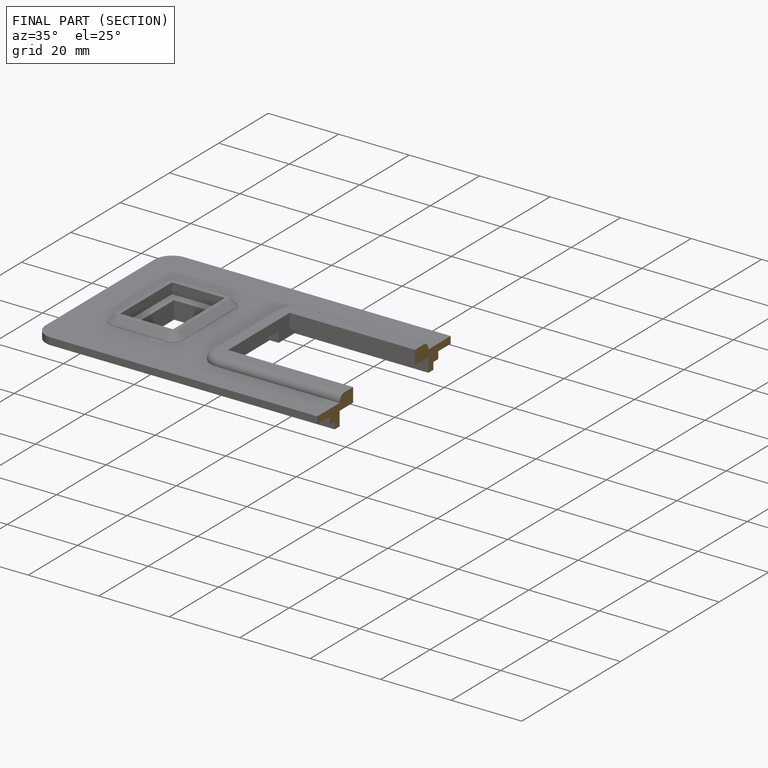
[diagram: finished part — half-section view (interior)]
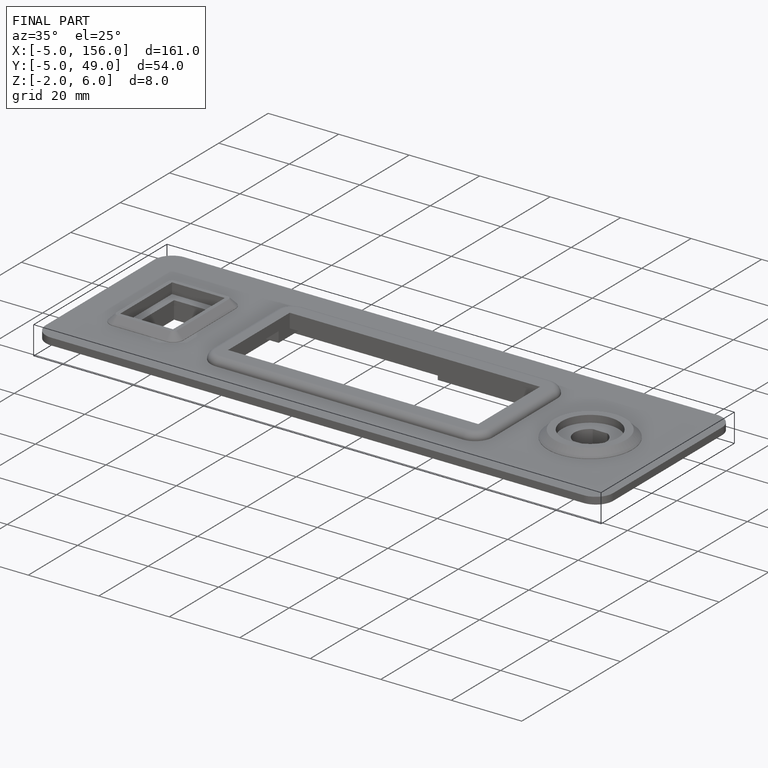
[diagram: finished part — iso view with bounding-box wireframe]
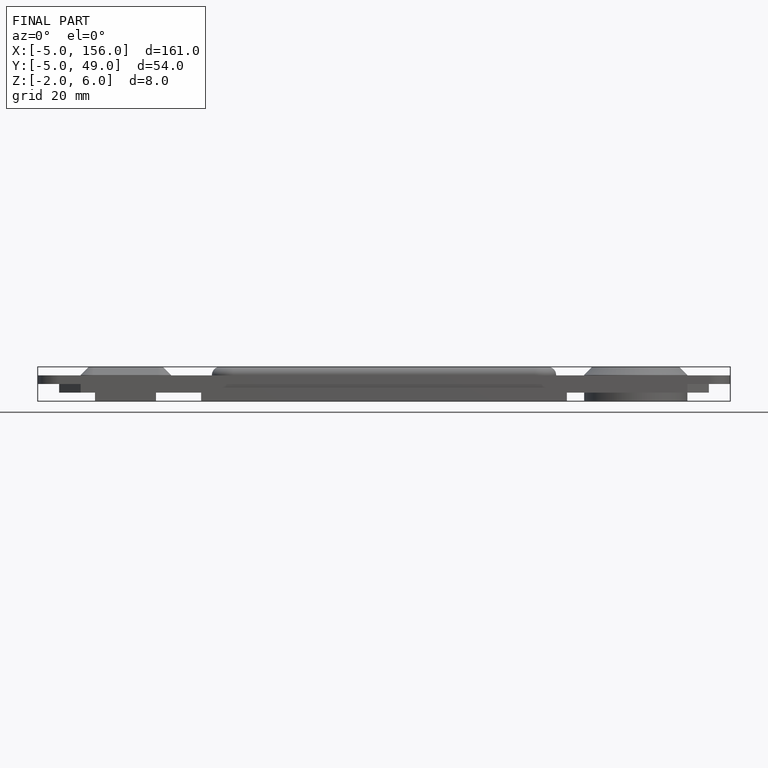
[diagram: finished part — front view with bounding-box wireframe]
